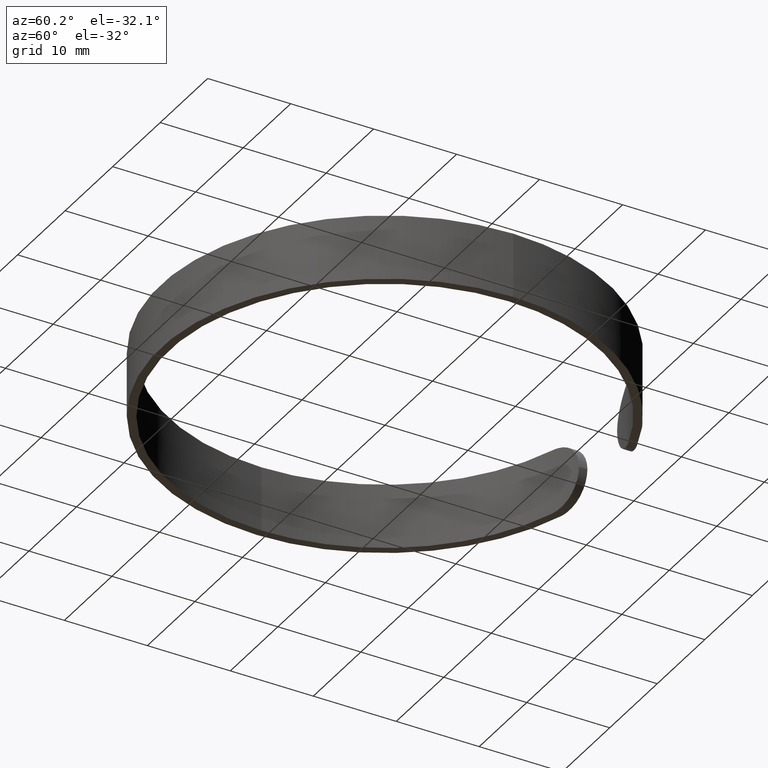
[diagram: clean part render]
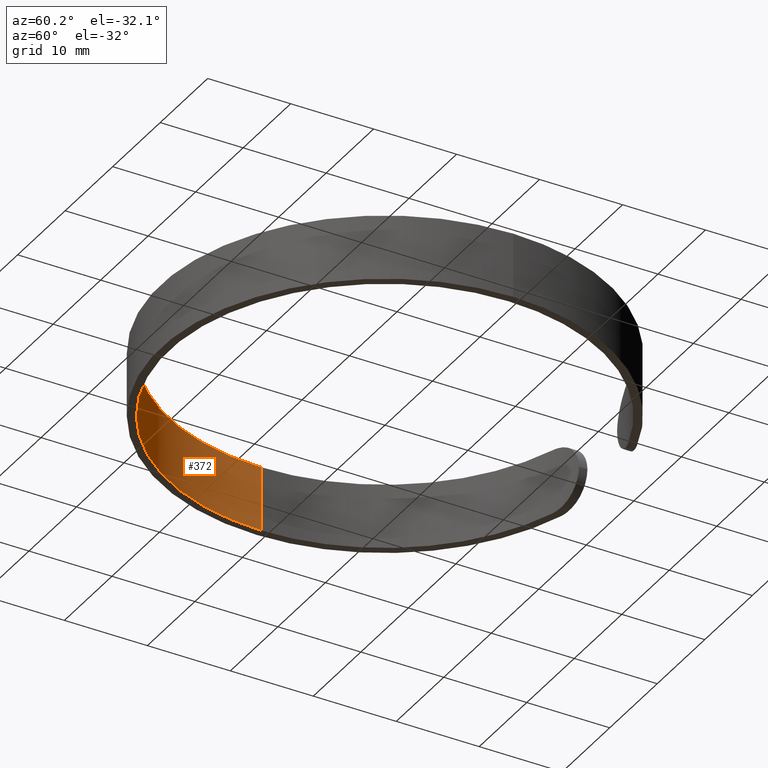
[diagram: same view with one face highlighted and labeled with its STEP entity id]
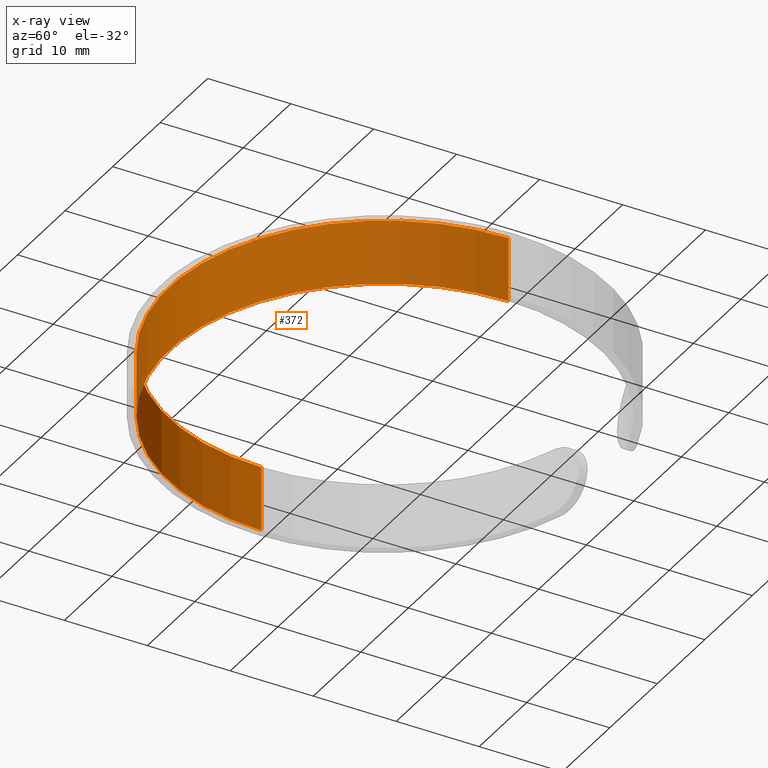
[diagram: x-ray of the same camera — body ghosted, the highlighted face saturated]
A machine part, auxiliary view. The second image highlights one B-rep face of the part: STEP entity #372.
The next image is the same camera in x-ray: the body ghosted, the highlighted face saturated — about 0% of this face is hidden behind the body in this view.
In plain terms, the highlighted cylindrical surface (partial cylindrical patch) has radius 26 mm, axis along (-0, -0, -1).
Its self-contained STEP definition (entity closure, byte-faithful):
#46 = LINE ( 'NONE', #398, #279 ) ;
#47 = VERTEX_POINT ( 'NONE', #148 ) ;
#66 = ORIENTED_EDGE ( 'NONE', *, *, #224, .T. ) ;
#79 = VERTEX_POINT ( 'NONE', #197 ) ;
#92 = EDGE_CURVE ( 'NONE', #221, #79, #46, .T. ) ;
#100 = AXIS2_PLACEMENT_3D ( 'NONE', #459, #104, #191 ) ;
#104 = DIRECTION ( 'NONE',  ( -0.0000000000000000000, -0.0000000000000000000, -1.000000000000000000 ) ) ;
#118 = DIRECTION ( 'NONE',  ( -0.0000000000000000000, -0.0000000000000000000, -1.000000000000000000 ) ) ;
#119 = AXIS2_PLACEMENT_3D ( 'NONE', #580, #282, #637 ) ;
#122 = FACE_OUTER_BOUND ( 'NONE', #400, .T. ) ;
#138 = CIRCLE ( 'NONE', #237, 25.99999999999999600 ) ;
#148 = CARTESIAN_POINT ( 'NONE',  ( 25.99999999999999600, 3.184081677783117800E-015, 0.0000000000000000000 ) ) ;
#182 = CARTESIAN_POINT ( 'NONE',  ( 0.0000000000000000000, 0.0000000000000000000, 7.799999999999999800 ) ) ;
#184 = DIRECTION ( 'NONE',  ( -0.0000000000000000000, -0.0000000000000000000, -1.000000000000000000 ) ) ;
#191 = DIRECTION ( 'NONE',  ( 1.000000000000000000, 0.0000000000000000000, 0.0000000000000000000 ) ) ;
#197 = CARTESIAN_POINT ( 'NONE',  ( -25.99999999999999600, 0.0000000000000000000, 0.0000000000000000000 ) ) ;
#221 = VERTEX_POINT ( 'NONE', #624 ) ;
#224 = EDGE_CURVE ( 'NONE', #529, #47, #286, .T. ) ;
#237 = AXIS2_PLACEMENT_3D ( 'NONE', #182, #184, #538 ) ;
#238 = CARTESIAN_POINT ( 'NONE',  ( 25.99999999999999600, 3.184081677783117800E-015, 7.799999999999999800 ) ) ;
#279 = VECTOR ( 'NONE', #602, 1000.000000000000000 ) ;
#282 = DIRECTION ( 'NONE',  ( -0.0000000000000000000, -0.0000000000000000000, -1.000000000000000000 ) ) ;
#286 = LINE ( 'NONE', #566, #366 ) ;
#295 = ORIENTED_EDGE ( 'NONE', *, *, #92, .F. ) ;
#348 = CIRCLE ( 'NONE', #100, 25.99999999999999600 ) ;
#366 = VECTOR ( 'NONE', #118, 1000.000000000000000 ) ;
#372 = ADVANCED_FACE ( 'NONE', ( #122 ), #544, .F. ) ;
#374 = ORIENTED_EDGE ( 'NONE', *, *, #578, .T. ) ;
#398 = CARTESIAN_POINT ( 'NONE',  ( -25.99999999999999600, 0.0000000000000000000, 7.799999999999999800 ) ) ;
#400 = EDGE_LOOP ( 'NONE', ( #503, #66, #374, #295 ) ) ;
#431 = EDGE_CURVE ( 'NONE', #529, #221, #138, .T. ) ;
#459 = CARTESIAN_POINT ( 'NONE',  ( 0.0000000000000000000, 0.0000000000000000000, 0.0000000000000000000 ) ) ;
#503 = ORIENTED_EDGE ( 'NONE', *, *, #431, .F. ) ;
#529 = VERTEX_POINT ( 'NONE', #238 ) ;
#538 = DIRECTION ( 'NONE',  ( 1.000000000000000000, 0.0000000000000000000, 0.0000000000000000000 ) ) ;
#544 = CYLINDRICAL_SURFACE ( 'NONE', #119, 25.99999999999999600 ) ;
#566 = CARTESIAN_POINT ( 'NONE',  ( 25.99999999999999600, 3.184081677783117800E-015, 7.799999999999999800 ) ) ;
#578 = EDGE_CURVE ( 'NONE', #47, #79, #348, .T. ) ;
#580 = CARTESIAN_POINT ( 'NONE',  ( 0.0000000000000000000, 0.0000000000000000000, 7.799999999999999800 ) ) ;
#602 = DIRECTION ( 'NONE',  ( -0.0000000000000000000, -0.0000000000000000000, -1.000000000000000000 ) ) ;
#624 = CARTESIAN_POINT ( 'NONE',  ( -25.99999999999999600, 0.0000000000000000000, 7.799999999999999800 ) ) ;
#637 = DIRECTION ( 'NONE',  ( -1.000000000000000000, 0.0000000000000000000, 0.0000000000000000000 ) ) ;